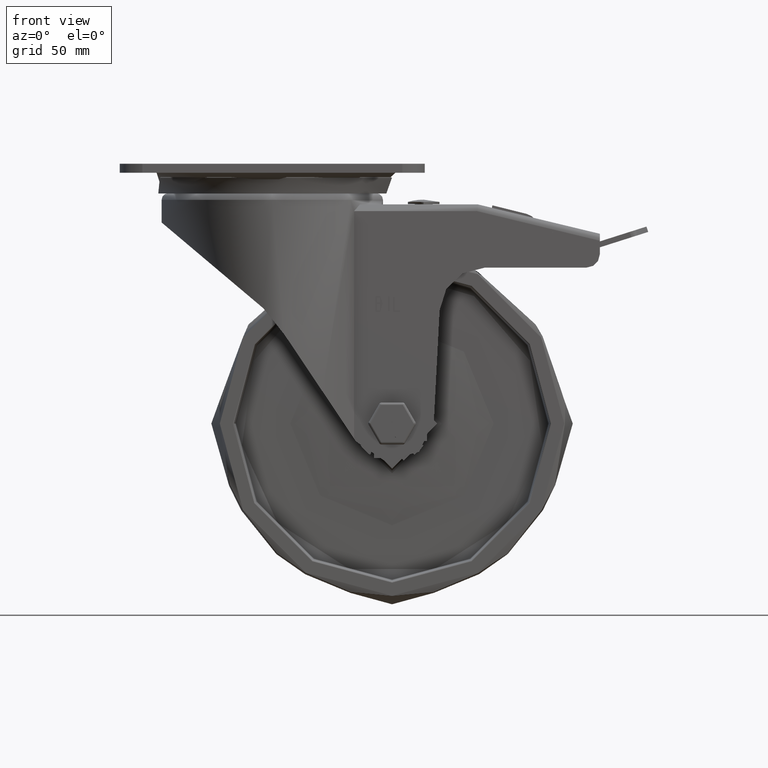
[diagram: clean part render]
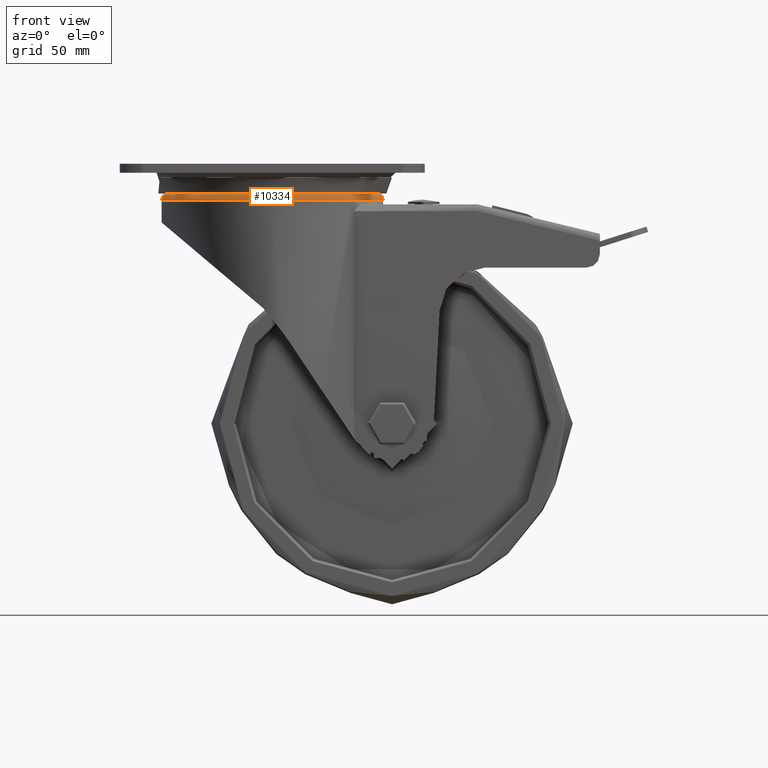
[diagram: same view with one face highlighted and labeled with its STEP entity id]
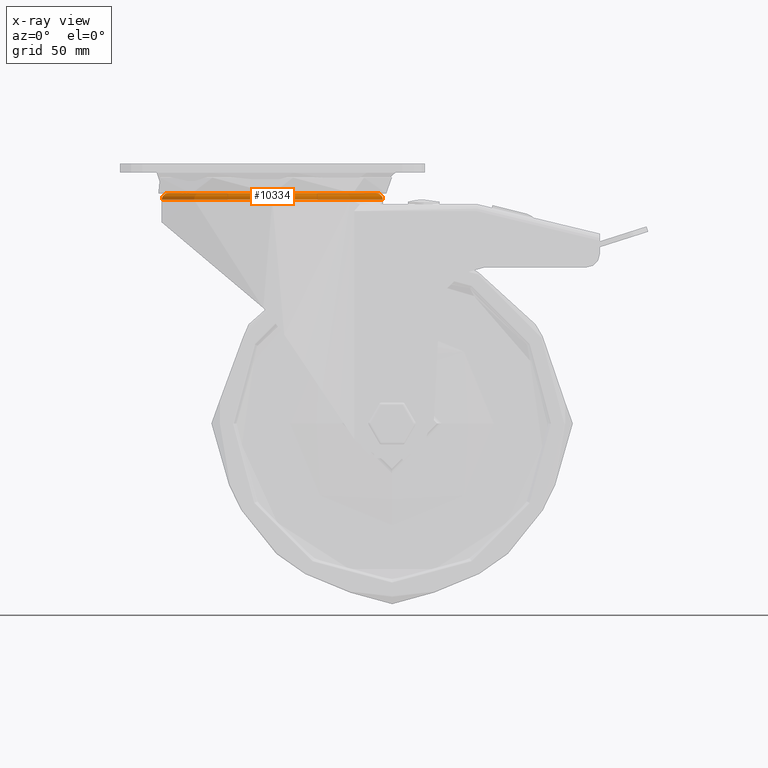
[diagram: x-ray of the same camera — body ghosted, the highlighted face saturated]
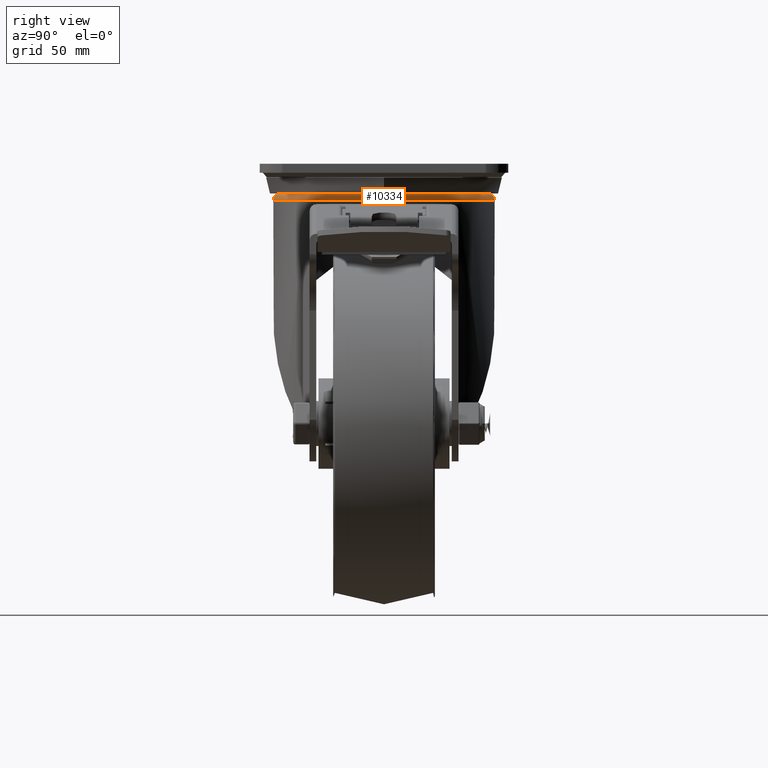
[diagram: same view with one face highlighted and labeled with its STEP entity id]
A machine part, front view. The second image highlights one B-rep face of the part: STEP entity #10334.
The next image is the same camera in x-ray: the body ghosted, the highlighted face saturated — about 0% of this face is hidden behind the body in this view.
A second angle (right view) of the same face is appended — the face is thin or edge-on in the first view.
In plain terms, the highlighted toroidal blend (fillet) surface has major radius 46 mm and minor (blend) radius 3 mm.
Its self-contained STEP definition (entity closure, byte-faithful):
#1099=TOROIDAL_SURFACE('',#11287,46.,3.);
#1206=FACE_OUTER_BOUND('',#1828,.T.);
#1828=EDGE_LOOP('',(#7426,#7427,#7428,#7429));
#4151=CIRCLE('',#11288,49.);
#4152=CIRCLE('',#11289,3.);
#4153=CIRCLE('',#11290,46.);
#4632=VERTEX_POINT('',#18217);
#4633=VERTEX_POINT('',#18219);
#5686=EDGE_CURVE('',#4632,#4632,#4151,.T.);
#5687=EDGE_CURVE('',#4632,#4633,#4152,.T.);
#5688=EDGE_CURVE('',#4633,#4633,#4153,.T.);
#7426=ORIENTED_EDGE('',*,*,#5686,.T.);
#7427=ORIENTED_EDGE('',*,*,#5687,.T.);
#7428=ORIENTED_EDGE('',*,*,#5688,.T.);
#7429=ORIENTED_EDGE('',*,*,#5687,.F.);
#10334=ADVANCED_FACE('',(#1206),#1099,.T.);
#11287=AXIS2_PLACEMENT_3D('',#18216,#12701,#12702);
#11288=AXIS2_PLACEMENT_3D('',#18218,#12703,#12704);
#11289=AXIS2_PLACEMENT_3D('',#18220,#12705,#12706);
#11290=AXIS2_PLACEMENT_3D('',#18221,#12707,#12708);
#12701=DIRECTION('center_axis',(0.,0.,-1.));
#12702=DIRECTION('ref_axis',(-1.,0.,0.));
#12703=DIRECTION('center_axis',(0.,0.,1.));
#12704=DIRECTION('ref_axis',(1.,1.22464679914735E-16,0.));
#12705=DIRECTION('center_axis',(-1.22464679914735E-16,-1.,0.));
#12706=DIRECTION('ref_axis',(1.,-1.22464679914735E-16,0.));
#12707=DIRECTION('center_axis',(0.,0.,-1.));
#12708=DIRECTION('ref_axis',(1.,1.22464679914735E-16,0.));
#18216=CARTESIAN_POINT('Origin',(0.,-6.93889390390723E-15,-16.));
#18217=CARTESIAN_POINT('',(49.,-9.38124588085198E-16,-16.));
#18218=CARTESIAN_POINT('Origin',(0.,-6.93889390390723E-15,-16.));
#18219=CARTESIAN_POINT('',(46.,-1.3055186278294E-15,-13.));
#18220=CARTESIAN_POINT('Origin',(46.,-1.25722691799851E-14,-16.));
#18221=CARTESIAN_POINT('Origin',(0.,-6.93889390390723E-15,-13.));